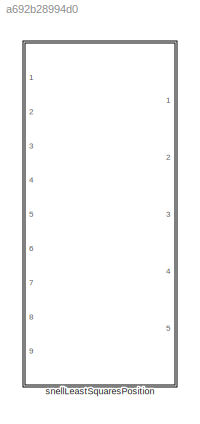
MODEL slx_a692b28994d0
KIND library
CONFIG AbsTol = auto
CONFIG EnableMultiTasking = off
CONFIG FixedStep = auto
CONFIG MaxStep = auto
CONFIG MinStep = auto
CONFIG RelTol = 1e-3
CONFIG SampleTimeConstraint = Unconstrained
CONFIG Solver = VariableStepAuto
CONFIG SolverName = VariableStepAuto
CONFIG StartTime = 0.0
CONFIG StopTime = 10.0
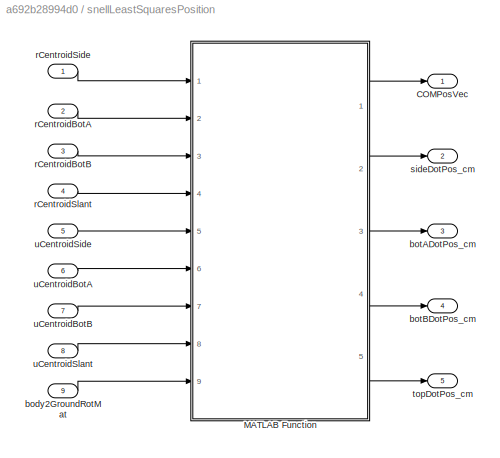
BLOCK [SubSystem] snellLeastSquaresPosition
  Ports = [9, 5]
  RequestExecContextInheritance = off
BLOCK [Outport] snellLeastSquaresPosition/COMPosVec
  IconDisplay = Port number
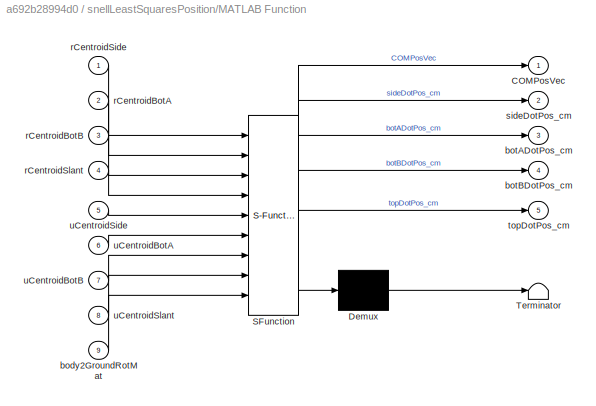
BLOCK [SubSystem] snellLeastSquaresPosition/MATLAB Function
  ErrorFcn = Stateflow.Translate.translate
  PermitHierarchicalResolution = ExplicitOnly
  Ports = [9, 5]
  RequestExecContextInheritance = off
  SFBlockType = MATLAB Function
  TreatAsAtomicUnit = on
BLOCK [Demux] snellLeastSquaresPosition/MATLAB Function/ Demux 
  Outputs = 1
  Ports = [1, 1]
BLOCK [S-Function] snellLeastSquaresPosition/MATLAB Function/ SFunction 
  EnableBusSupport = off
  FunctionName = sf_sfun
  Parameters = botADotPosVec_cm,botBDotPosVec_cm,sideDotPosVec_cm,topDotPosVec_cm
  PortCounts = [9 6]
  Ports = [9, 6]
  SFcnIsStateOwnerBlock = off
  SFunctionDeploymentMode = off
  Tag = Stateflow S-Function snellLeastSquaresPosition_ul 2
BLOCK [Terminator] snellLeastSquaresPosition/MATLAB Function/ Terminator 
BLOCK [Outport] snellLeastSquaresPosition/MATLAB Function/COMPosVec
  IconDisplay = Port number
BLOCK [Inport] snellLeastSquaresPosition/MATLAB Function/body2GroundRotMat
  IconDisplay = Port number
  Port = 9
BLOCK [Outport] snellLeastSquaresPosition/MATLAB Function/botADotPos_cm
  IconDisplay = Port number
  Port = 3
BLOCK [Outport] snellLeastSquaresPosition/MATLAB Function/botBDotPos_cm
  IconDisplay = Port number
  Port = 4
BLOCK [Inport] snellLeastSquaresPosition/MATLAB Function/rCentroidBotA
  IconDisplay = Port number
  Port = 2
BLOCK [Inport] snellLeastSquaresPosition/MATLAB Function/rCentroidBotB
  IconDisplay = Port number
  Port = 3
BLOCK [Inport] snellLeastSquaresPosition/MATLAB Function/rCentroidSide
  IconDisplay = Port number
BLOCK [Inport] snellLeastSquaresPosition/MATLAB Function/rCentroidSlant
  IconDisplay = Port number
  Port = 4
BLOCK [Outport] snellLeastSquaresPosition/MATLAB Function/sideDotPos_cm
  IconDisplay = Port number
  Port = 2
BLOCK [Outport] snellLeastSquaresPosition/MATLAB Function/topDotPos_cm
  IconDisplay = Port number
  Port = 5
BLOCK [Inport] snellLeastSquaresPosition/MATLAB Function/uCentroidBotA
  IconDisplay = Port number
  Port = 6
BLOCK [Inport] snellLeastSquaresPosition/MATLAB Function/uCentroidBotB
  IconDisplay = Port number
  Port = 7
BLOCK [Inport] snellLeastSquaresPosition/MATLAB Function/uCentroidSide
  IconDisplay = Port number
  Port = 5
BLOCK [Inport] snellLeastSquaresPosition/MATLAB Function/uCentroidSlant
  IconDisplay = Port number
  Port = 8
BLOCK [Inport] snellLeastSquaresPosition/body2GroundRotMat
  IconDisplay = Port number
  Port = 9
BLOCK [Outport] snellLeastSquaresPosition/botADotPos_cm
  IconDisplay = Port number
  Port = 3
BLOCK [Outport] snellLeastSquaresPosition/botBDotPos_cm
  IconDisplay = Port number
  Port = 4
BLOCK [Inport] snellLeastSquaresPosition/rCentroidBotA
  IconDisplay = Port number
  Port = 2
BLOCK [Inport] snellLeastSquaresPosition/rCentroidBotB
  IconDisplay = Port number
  Port = 3
BLOCK [Inport] snellLeastSquaresPosition/rCentroidSide
  IconDisplay = Port number
BLOCK [Inport] snellLeastSquaresPosition/rCentroidSlant
  IconDisplay = Port number
  Port = 4
BLOCK [Outport] snellLeastSquaresPosition/sideDotPos_cm
  IconDisplay = Port number
  Port = 2
BLOCK [Outport] snellLeastSquaresPosition/topDotPos_cm
  IconDisplay = Port number
  Port = 5
BLOCK [Inport] snellLeastSquaresPosition/uCentroidBotA
  IconDisplay = Port number
  Port = 6
BLOCK [Inport] snellLeastSquaresPosition/uCentroidBotB
  IconDisplay = Port number
  Port = 7
BLOCK [Inport] snellLeastSquaresPosition/uCentroidSide
  IconDisplay = Port number
  Port = 5
BLOCK [Inport] snellLeastSquaresPosition/uCentroidSlant
  IconDisplay = Port number
  Port = 8
LINE snellLeastSquaresPosition/MATLAB Function:1 -> snellLeastSquaresPosition/COMPosVec:1
LINE snellLeastSquaresPosition/MATLAB Function:2 -> snellLeastSquaresPosition/sideDotPos_cm:1
LINE snellLeastSquaresPosition/MATLAB Function:3 -> snellLeastSquaresPosition/botADotPos_cm:1
LINE snellLeastSquaresPosition/MATLAB Function:4 -> snellLeastSquaresPosition/botBDotPos_cm:1
LINE snellLeastSquaresPosition/MATLAB Function:5 -> snellLeastSquaresPosition/topDotPos_cm:1
LINE snellLeastSquaresPosition/body2GroundRotMat:1 -> snellLeastSquaresPosition/MATLAB Function:9
LINE snellLeastSquaresPosition/rCentroidBotA:1 -> snellLeastSquaresPosition/MATLAB Function:2
LINE snellLeastSquaresPosition/rCentroidBotB:1 -> snellLeastSquaresPosition/MATLAB Function:3
LINE snellLeastSquaresPosition/rCentroidSide:1 -> snellLeastSquaresPosition/MATLAB Function:1
LINE snellLeastSquaresPosition/rCentroidSlant:1 -> snellLeastSquaresPosition/MATLAB Function:4
LINE snellLeastSquaresPosition/uCentroidBotA:1 -> snellLeastSquaresPosition/MATLAB Function:6
LINE snellLeastSquaresPosition/uCentroidBotB:1 -> snellLeastSquaresPosition/MATLAB Function:7
LINE snellLeastSquaresPosition/uCentroidSide:1 -> snellLeastSquaresPosition/MATLAB Function:5
LINE snellLeastSquaresPosition/uCentroidSlant:1 -> snellLeastSquaresPosition/MATLAB Function:8
CHART snellLeastSquaresPosition/MATLAB Function states=1 transitions=1
  STATE_LABEL 'eML_blk_kernel()'
  STATE_LABEL 'SCRIPT:\nfunction [COMPosVec,sideDotPos_cm,botADotPos_cm,botBDotPos_cm,topDotPos_cm]...\n    = snellLeastSquaresPosition(...\n    rCentroidSide,...\n    rCentroidBotA,...\n    rCentroidBotB,...\n    rCentroidSlant,...\n    uCentroidSide,...\n    uCentroidBotA,...\n    uCentroidBotB,...\n    uCentroidSlant,...\n    body2GroundRotMat,...\n    sideDotPosVec_cm,botADotPosVec_cm,botBDotPosVec_cm,topDotPosVec_cm)\n\n...<+383ch>'
